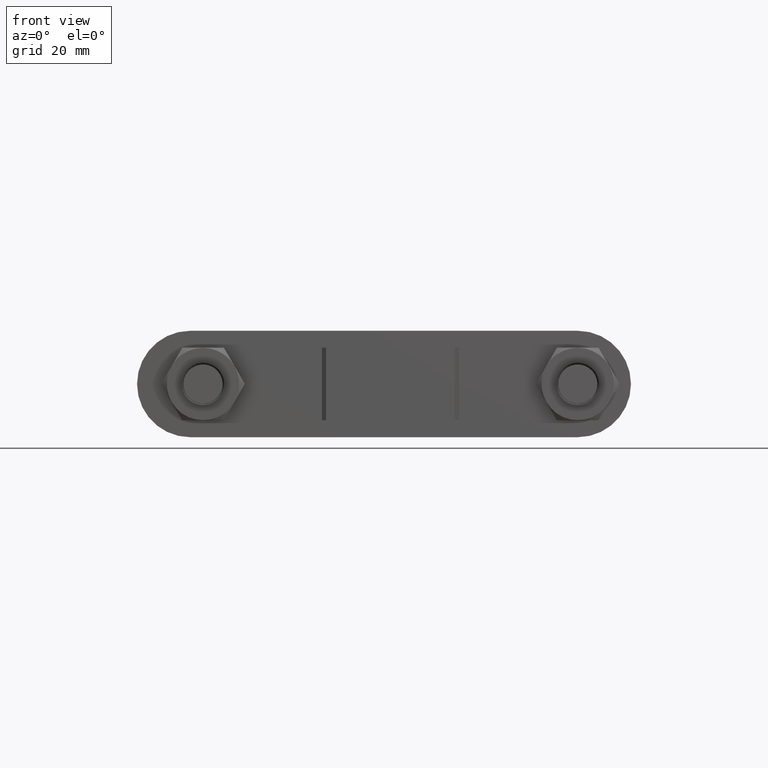
[diagram: clean part render]
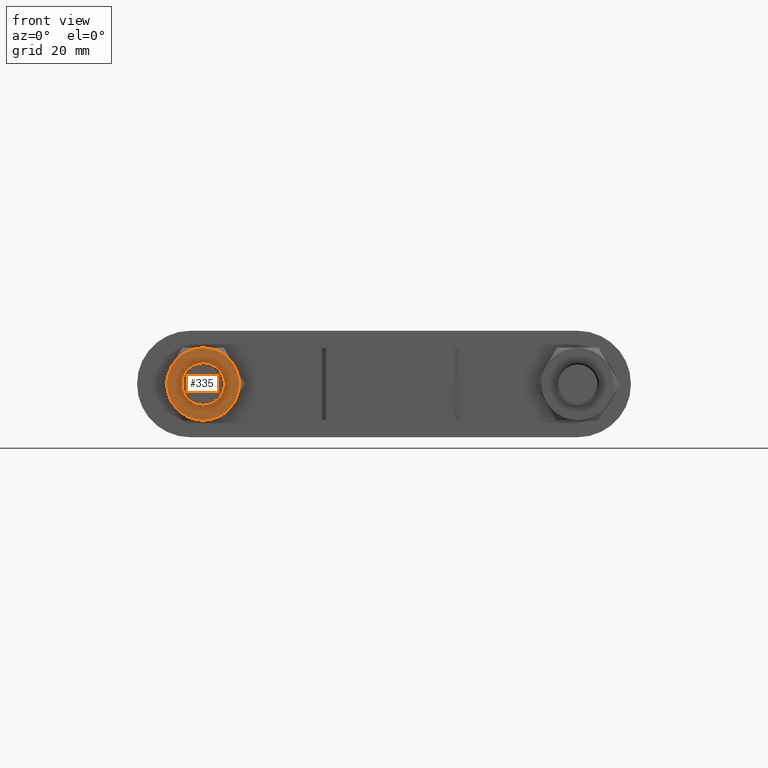
[diagram: same view with one face highlighted and labeled with its STEP entity id]
A machine part, front view. The second image highlights one B-rep face of the part: STEP entity #335.
In plain terms, the highlighted planar face has unit normal (0, 1, 0).
Its self-contained STEP definition (entity closure, byte-faithful):
#335 = ADVANCED_FACE( '', ( #538, #539 ), #540, .F. );
#538 = FACE_OUTER_BOUND( '', #1620, .T. );
#539 = FACE_BOUND( '', #1621, .T. );
#540 = PLANE( '', #1622 );
#1620 = EDGE_LOOP( '', ( #2206, #2207, #2208, #2209, #2210, #2211 ) );
#1621 = EDGE_LOOP( '', ( #2212 ) );
#1622 = AXIS2_PLACEMENT_3D( '', #2213, #2214, #2215 );
#2206 = ORIENTED_EDGE( '', *, *, #2685, .F. );
#2207 = ORIENTED_EDGE( '', *, *, #2686, .F. );
#2208 = ORIENTED_EDGE( '', *, *, #2687, .F. );
#2209 = ORIENTED_EDGE( '', *, *, #2688, .F. );
#2210 = ORIENTED_EDGE( '', *, *, #2683, .F. );
#2211 = ORIENTED_EDGE( '', *, *, #2689, .F. );
#2212 = ORIENTED_EDGE( '', *, *, #2690, .T. );
#2213 = CARTESIAN_POINT( '', ( -44.0000000000000, 22.0000000000013, 1.05612133621817E-015 ) );
#2214 = DIRECTION( '', ( 2.44921270764475E-016, 1.00000000000000, 6.12303176911189E-017 ) );
#2215 = DIRECTION( '', ( -2.47579734491450E-013, 6.12303176911795E-017, -1.00000000000000 ) );
#2683 = EDGE_CURVE( '', #3014, #3016, #3017, .T. );
#2685 = EDGE_CURVE( '', #3019, #3020, #3021, .T. );
#2686 = EDGE_CURVE( '', #3022, #3019, #3023, .T. );
#2687 = EDGE_CURVE( '', #3024, #3022, #3025, .T. );
#2688 = EDGE_CURVE( '', #3016, #3024, #3026, .T. );
#2689 = EDGE_CURVE( '', #3020, #3014, #3027, .T. );
#2690 = EDGE_CURVE( '', #3028, #3028, #3029, .T. );
#3014 = VERTEX_POINT( '', #3743 );
#3016 = VERTEX_POINT( '', #3750 );
#3017 = CIRCLE( '', #3751, 8.49999999999722 );
#3019 = VERTEX_POINT( '', #3760 );
#3020 = VERTEX_POINT( '', #3761 );
#3021 = CIRCLE( '', #3762, 8.49999999999722 );
#3022 = VERTEX_POINT( '', #3763 );
#3023 = CIRCLE( '', #3764, 8.49999999999722 );
#3024 = VERTEX_POINT( '', #3765 );
#3025 = CIRCLE( '', #3766, 8.49999999999722 );
#3026 = CIRCLE( '', #3767, 8.49999999999722 );
#3027 = CIRCLE( '', #3768, 8.49999999999722 );
#3028 = VERTEX_POINT( '', #3769 );
#3029 = CIRCLE( '', #3770, 4.99999999999836 );
#3743 = CARTESIAN_POINT( '', ( -43.9999999999979, 22.0000000000013, 8.49999999999722 ) );
#3750 = CARTESIAN_POINT( '', ( -36.6387840678348, 22.0000000000013, 4.24999999999679 ) );
#3751 = AXIS2_PLACEMENT_3D( '', #4273, #4274, #4275 );
#3760 = CARTESIAN_POINT( '', ( -51.3612159321651, 22.0000000000013, -4.24999999999678 ) );
#3761 = CARTESIAN_POINT( '', ( -51.3612159321630, 22.0000000000013, 4.25000000000043 ) );
#3762 = AXIS2_PLACEMENT_3D( '', #4276, #4277, #4278 );
#3763 = CARTESIAN_POINT( '', ( -44.0000000000021, 22.0000000000013, -8.49999999999722 ) );
#3764 = AXIS2_PLACEMENT_3D( '', #4279, #4280, #4281 );
#3765 = CARTESIAN_POINT( '', ( -36.6387840678369, 22.0000000000013, -4.25000000000043 ) );
#3766 = AXIS2_PLACEMENT_3D( '', #4282, #4283, #4284 );
#3767 = AXIS2_PLACEMENT_3D( '', #4285, #4286, #4287 );
#3768 = AXIS2_PLACEMENT_3D( '', #4288, #4289, #4290 );
#3769 = CARTESIAN_POINT( '', ( -44.0000000000012, 22.0000000000013, -4.99999999999836 ) );
#3770 = AXIS2_PLACEMENT_3D( '', #4291, #4292, #4293 );
#4273 = CARTESIAN_POINT( '', ( -44.0000000000000, 22.0000000000013, 1.05612133621817E-015 ) );
#4274 = DIRECTION( '', ( 2.44921270764475E-016, 1.00000000000000, 6.12303176911189E-017 ) );
#4275 = DIRECTION( '', ( -2.47579734491451E-013, 6.12303176911795E-017, -1.00000000000000 ) );
#4276 = CARTESIAN_POINT( '', ( -44.0000000000000, 22.0000000000013, 1.05612133621817E-015 ) );
#4277 = DIRECTION( '', ( 2.44921270764475E-016, 1.00000000000000, 6.12303176911189E-017 ) );
#4278 = DIRECTION( '', ( -2.47579734491451E-013, 6.12303176911795E-017, -1.00000000000000 ) );
#4279 = CARTESIAN_POINT( '', ( -44.0000000000000, 22.0000000000013, 1.05612133621817E-015 ) );
#4280 = DIRECTION( '', ( 2.44921270764475E-016, 1.00000000000000, 6.12303176911189E-017 ) );
#4281 = DIRECTION( '', ( -2.47579734491451E-013, 6.12303176911795E-017, -1.00000000000000 ) );
#4282 = CARTESIAN_POINT( '', ( -44.0000000000000, 22.0000000000013, 1.05612133621817E-015 ) );
#4283 = DIRECTION( '', ( 2.44921270764475E-016, 1.00000000000000, 6.12303176911189E-017 ) );
#4284 = DIRECTION( '', ( -2.47579734491451E-013, 6.12303176911795E-017, -1.00000000000000 ) );
#4285 = CARTESIAN_POINT( '', ( -44.0000000000000, 22.0000000000013, 1.05612133621817E-015 ) );
#4286 = DIRECTION( '', ( 2.44921270764475E-016, 1.00000000000000, 6.12303176911189E-017 ) );
#4287 = DIRECTION( '', ( -2.47579734491451E-013, 6.12303176911795E-017, -1.00000000000000 ) );
#4288 = CARTESIAN_POINT( '', ( -44.0000000000000, 22.0000000000013, 1.05612133621817E-015 ) );
#4289 = DIRECTION( '', ( 2.44921270764475E-016, 1.00000000000000, 6.12303176911189E-017 ) );
#4290 = DIRECTION( '', ( -2.47579734491451E-013, 6.12303176911795E-017, -1.00000000000000 ) );
#4291 = CARTESIAN_POINT( '', ( -44.0000000000000, 22.0000000000013, 1.05612133621817E-015 ) );
#4292 = DIRECTION( '', ( 2.44921270764476E-016, 1.00000000000000, 6.12303176911189E-017 ) );
#4293 = DIRECTION( '', ( -2.47579734491451E-013, 6.12303176911795E-017, -1.00000000000000 ) );